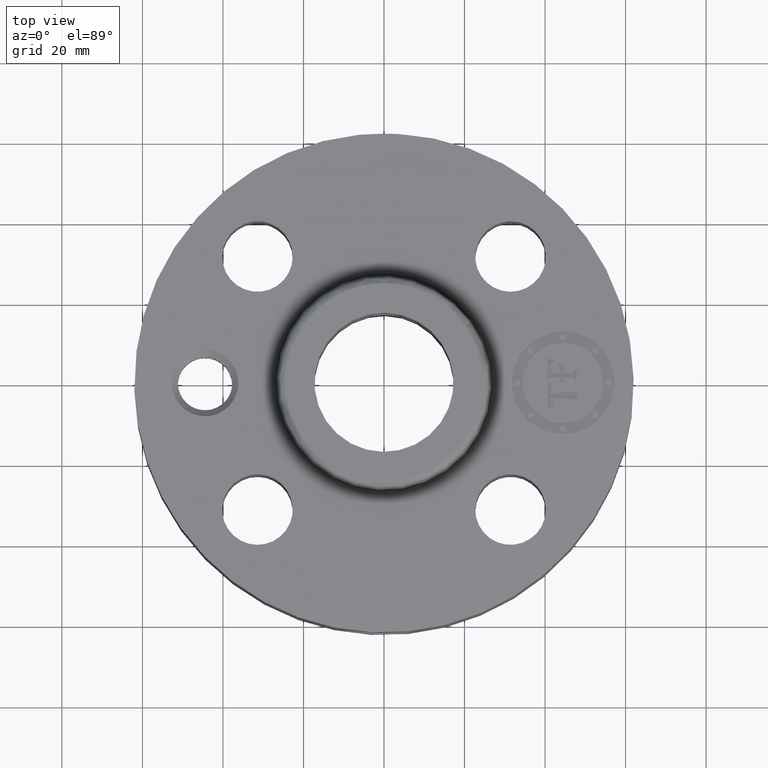
[diagram: clean part render]
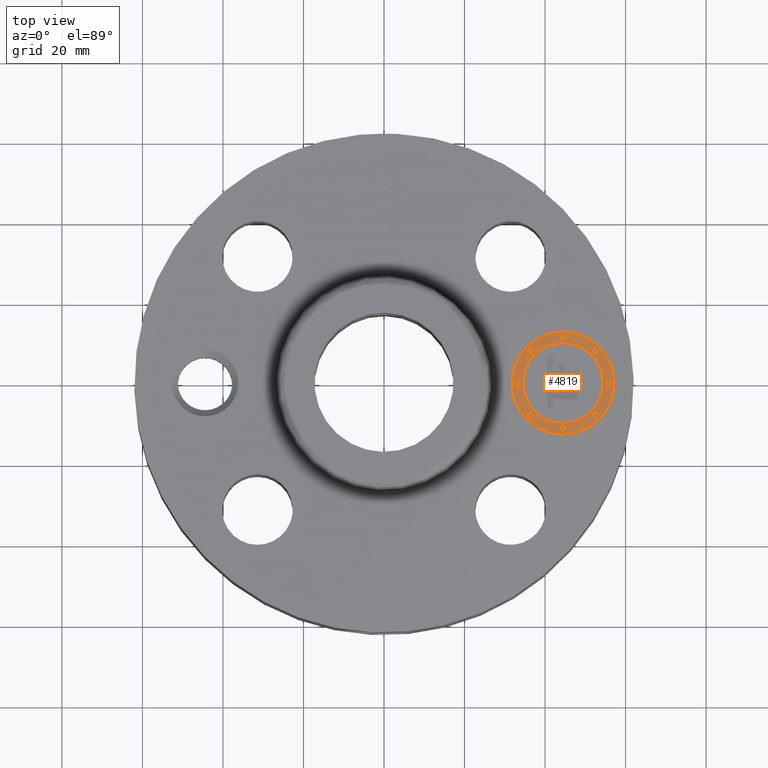
[diagram: same view with one face highlighted and labeled with its STEP entity id]
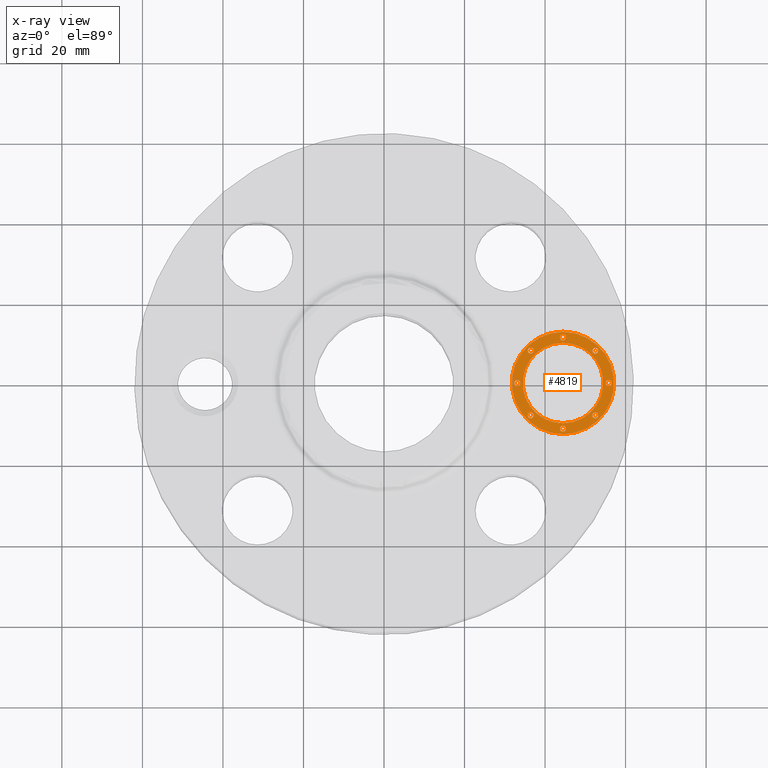
[diagram: x-ray of the same camera — body ghosted, the highlighted face saturated]
A machine part, top view. The second image highlights one B-rep face of the part: STEP entity #4819.
The next image is the same camera in x-ray: the body ghosted, the highlighted face saturated — about 0% of this face is hidden behind the body in this view.
In plain terms, the highlighted planar face has unit normal (0, 0, 1).
Its self-contained STEP definition (entity closure, byte-faithful):
#3497=AXIS2_PLACEMENT_3D('Circle Axis2P3D',#3495,#3496,$) ;
#3524=AXIS2_PLACEMENT_3D('Circle Axis2P3D',#3522,#3523,$) ;
#4651=AXIS2_PLACEMENT_3D('Plane Axis2P3D',#4648,#4649,#4650) ;
#4659=AXIS2_PLACEMENT_3D('Circle Axis2P3D',#4657,#4658,$) ;
#4668=AXIS2_PLACEMENT_3D('Circle Axis2P3D',#4666,#4667,$) ;
#4677=AXIS2_PLACEMENT_3D('Circle Axis2P3D',#4675,#4676,$) ;
#4686=AXIS2_PLACEMENT_3D('Circle Axis2P3D',#4684,#4685,$) ;
#4695=AXIS2_PLACEMENT_3D('Circle Axis2P3D',#4693,#4694,$) ;
#4704=AXIS2_PLACEMENT_3D('Circle Axis2P3D',#4702,#4703,$) ;
#4713=AXIS2_PLACEMENT_3D('Circle Axis2P3D',#4711,#4712,$) ;
#4722=AXIS2_PLACEMENT_3D('Circle Axis2P3D',#4720,#4721,$) ;
#4731=AXIS2_PLACEMENT_3D('Circle Axis2P3D',#4729,#4730,$) ;
#4740=AXIS2_PLACEMENT_3D('Circle Axis2P3D',#4738,#4739,$) ;
#4749=AXIS2_PLACEMENT_3D('Circle Axis2P3D',#4747,#4748,$) ;
#4758=AXIS2_PLACEMENT_3D('Circle Axis2P3D',#4756,#4757,$) ;
#4767=AXIS2_PLACEMENT_3D('Circle Axis2P3D',#4765,#4766,$) ;
#4776=AXIS2_PLACEMENT_3D('Circle Axis2P3D',#4774,#4775,$) ;
#4785=AXIS2_PLACEMENT_3D('Circle Axis2P3D',#4783,#4784,$) ;
#4794=AXIS2_PLACEMENT_3D('Circle Axis2P3D',#4792,#4793,$) ;
#4803=AXIS2_PLACEMENT_3D('Circle Axis2P3D',#4801,#4802,$) ;
#4812=AXIS2_PLACEMENT_3D('Circle Axis2P3D',#4810,#4811,$) ;
#3492=CARTESIAN_POINT('Vertex',(1.75000000001,-0.500000000002,1.54500000001)) ;
#3495=CARTESIAN_POINT('Axis2P3D Location',(1.75000000001,0.,1.54500000001)) ;
#3499=CARTESIAN_POINT('Vertex',(1.75000000001,0.500000000002,1.54500000001)) ;
#3522=CARTESIAN_POINT('Axis2P3D Location',(1.75000000001,0.,1.54500000001)) ;
#4648=CARTESIAN_POINT('Axis2P3D Location',(0.,0.,1.54500000001)) ;
#4657=CARTESIAN_POINT('Axis2P3D Location',(1.75000000001,0.,1.54500000001)) ;
#4661=CARTESIAN_POINT('Vertex',(1.75000000001,-0.393939393941,1.54500000001)) ;
#4663=CARTESIAN_POINT('Vertex',(1.75000000001,0.393939393941,1.54500000001)) ;
#4666=CARTESIAN_POINT('Axis2P3D Location',(1.75000000001,0.,1.54500000001)) ;
#4675=CARTESIAN_POINT('Axis2P3D Location',(1.30303030304,-1.27155106614E-015,1.54500000001)) ;
#4679=CARTESIAN_POINT('Vertex',(1.30303030304,-0.0303030303032,1.54500000001)) ;
#4681=CARTESIAN_POINT('Vertex',(1.30303030304,0.0303030303032,1.54500000001)) ;
#4684=CARTESIAN_POINT('Axis2P3D Location',(1.30303030304,-1.27155106614E-015,1.54500000001)) ;
#4693=CARTESIAN_POINT('Axis2P3D Location',(1.75000000001,0.446969696972,1.54500000001)) ;
#4697=CARTESIAN_POINT('Vertex',(1.75000000001,0.416666666668,1.54500000001)) ;
#4699=CARTESIAN_POINT('Vertex',(1.75000000001,0.477272727275,1.54500000001)) ;
#4702=CARTESIAN_POINT('Axis2P3D Location',(1.75000000001,0.446969696972,1.54500000001)) ;
#4711=CARTESIAN_POINT('Axis2P3D Location',(1.43394469629,0.316055303713,1.54500000001)) ;
#4715=CARTESIAN_POINT('Vertex',(1.43394469629,0.28575227341,1.54500000001)) ;
#4717=CARTESIAN_POINT('Vertex',(1.43394469629,0.346358334017,1.54500000001)) ;
#4720=CARTESIAN_POINT('Axis2P3D Location',(1.43394469629,0.316055303713,1.54500000001)) ;
#4729=CARTESIAN_POINT('Axis2P3D Location',(2.19696969698,1.17265264989E-014,1.54500000001)) ;
#4733=CARTESIAN_POINT('Vertex',(2.19696969698,-0.0303030303031,1.54500000001)) ;
#4735=CARTESIAN_POINT('Vertex',(2.19696969698,0.0303030303032,1.54500000001)) ;
#4738=CARTESIAN_POINT('Axis2P3D Location',(2.19696969698,1.17265264989E-014,1.54500000001)) ;
#4747=CARTESIAN_POINT('Axis2P3D Location',(2.06605530372,0.316055303713,1.54500000001)) ;
#4751=CARTESIAN_POINT('Vertex',(2.06605530372,0.28575227341,1.54500000001)) ;
#4753=CARTESIAN_POINT('Vertex',(2.06605530372,0.346358334017,1.54500000001)) ;
#4756=CARTESIAN_POINT('Axis2P3D Location',(2.06605530372,0.316055303713,1.54500000001)) ;
#4765=CARTESIAN_POINT('Axis2P3D Location',(1.75000000001,-0.446969696972,1.54500000001)) ;
#4769=CARTESIAN_POINT('Vertex',(1.75000000001,-0.416666666668,1.54500000001)) ;
#4771=CARTESIAN_POINT('Vertex',(1.75000000001,-0.477272727275,1.54500000001)) ;
#4774=CARTESIAN_POINT('Axis2P3D Location',(1.75000000001,-0.446969696972,1.54500000001)) ;
#4783=CARTESIAN_POINT('Axis2P3D Location',(1.43394469629,-0.316055303713,1.54500000001)) ;
#4787=CARTESIAN_POINT('Vertex',(1.43394469629,-0.28575227341,1.54500000001)) ;
#4789=CARTESIAN_POINT('Vertex',(1.43394469629,-0.346358334017,1.54500000001)) ;
#4792=CARTESIAN_POINT('Axis2P3D Location',(1.43394469629,-0.316055303713,1.54500000001)) ;
#4801=CARTESIAN_POINT('Axis2P3D Location',(2.06605530372,-0.316055303713,1.54500000001)) ;
#4805=CARTESIAN_POINT('Vertex',(2.06605530372,-0.28575227341,1.54500000001)) ;
#4807=CARTESIAN_POINT('Vertex',(2.06605530372,-0.346358334017,1.54500000001)) ;
#4810=CARTESIAN_POINT('Axis2P3D Location',(2.06605530372,-0.316055303713,1.54500000001)) ;
#3496=DIRECTION('Axis2P3D Direction',(0.,0.,0.0393700787402)) ;
#3523=DIRECTION('Axis2P3D Direction',(0.,0.,0.0393700787402)) ;
#4649=DIRECTION('Axis2P3D Direction',(0.,0.,0.0393700787402)) ;
#4650=DIRECTION('Axis2P3D XDirection',(0.0393700787402,0.,0.)) ;
#4658=DIRECTION('Axis2P3D Direction',(0.,0.,0.0393700787402)) ;
#4667=DIRECTION('Axis2P3D Direction',(0.,0.,0.0393700787402)) ;
#4676=DIRECTION('Axis2P3D Direction',(0.,0.,0.0393700787402)) ;
#4685=DIRECTION('Axis2P3D Direction',(0.,0.,0.0393700787402)) ;
#4694=DIRECTION('Axis2P3D Direction',(0.,0.,0.0393700787402)) ;
#4703=DIRECTION('Axis2P3D Direction',(0.,0.,0.0393700787402)) ;
#4712=DIRECTION('Axis2P3D Direction',(0.,0.,0.0393700787402)) ;
#4721=DIRECTION('Axis2P3D Direction',(0.,0.,0.0393700787402)) ;
#4730=DIRECTION('Axis2P3D Direction',(0.,0.,0.0393700787402)) ;
#4739=DIRECTION('Axis2P3D Direction',(0.,0.,0.0393700787402)) ;
#4748=DIRECTION('Axis2P3D Direction',(0.,0.,0.0393700787402)) ;
#4757=DIRECTION('Axis2P3D Direction',(0.,0.,0.0393700787402)) ;
#4766=DIRECTION('Axis2P3D Direction',(0.,0.,0.0393700787402)) ;
#4775=DIRECTION('Axis2P3D Direction',(0.,0.,0.0393700787402)) ;
#4784=DIRECTION('Axis2P3D Direction',(0.,0.,0.0393700787402)) ;
#4793=DIRECTION('Axis2P3D Direction',(0.,0.,0.0393700787402)) ;
#4802=DIRECTION('Axis2P3D Direction',(0.,0.,0.0393700787402)) ;
#4811=DIRECTION('Axis2P3D Direction',(0.,0.,0.0393700787402)) ;
#4654=ORIENTED_EDGE('',*,*,#3501,.T.) ;
#4655=ORIENTED_EDGE('',*,*,#3526,.T.) ;
#4672=ORIENTED_EDGE('',*,*,#4665,.F.) ;
#4673=ORIENTED_EDGE('',*,*,#4670,.F.) ;
#4690=ORIENTED_EDGE('',*,*,#4683,.F.) ;
#4691=ORIENTED_EDGE('',*,*,#4688,.F.) ;
#4708=ORIENTED_EDGE('',*,*,#4701,.F.) ;
#4709=ORIENTED_EDGE('',*,*,#4706,.F.) ;
#4726=ORIENTED_EDGE('',*,*,#4719,.F.) ;
#4727=ORIENTED_EDGE('',*,*,#4724,.F.) ;
#4744=ORIENTED_EDGE('',*,*,#4737,.F.) ;
#4745=ORIENTED_EDGE('',*,*,#4742,.F.) ;
#4762=ORIENTED_EDGE('',*,*,#4755,.F.) ;
#4763=ORIENTED_EDGE('',*,*,#4760,.F.) ;
#4780=ORIENTED_EDGE('',*,*,#4773,.F.) ;
#4781=ORIENTED_EDGE('',*,*,#4778,.F.) ;
#4798=ORIENTED_EDGE('',*,*,#4791,.F.) ;
#4799=ORIENTED_EDGE('',*,*,#4796,.F.) ;
#4816=ORIENTED_EDGE('',*,*,#4809,.F.) ;
#4817=ORIENTED_EDGE('',*,*,#4814,.F.) ;
#4674=FACE_BOUND('',#4671,.T.) ;
#4692=FACE_BOUND('',#4689,.T.) ;
#4710=FACE_BOUND('',#4707,.T.) ;
#4728=FACE_BOUND('',#4725,.T.) ;
#4746=FACE_BOUND('',#4743,.T.) ;
#4764=FACE_BOUND('',#4761,.T.) ;
#4782=FACE_BOUND('',#4779,.T.) ;
#4800=FACE_BOUND('',#4797,.T.) ;
#4818=FACE_BOUND('',#4815,.T.) ;
#4819=ADVANCED_FACE('PartBody',(#4656,#4674,#4692,#4710,#4728,#4746,#4764,#4782,#4800,#4818),#4652,.T.) ;
#3498=CIRCLE('generated circle',#3497,0.500000000002) ;
#3525=CIRCLE('generated circle',#3524,0.500000000002) ;
#4660=CIRCLE('generated circle',#4659,0.393939393941) ;
#4669=CIRCLE('generated circle',#4668,0.393939393941) ;
#4678=CIRCLE('generated circle',#4677,0.0303030303032) ;
#4687=CIRCLE('generated circle',#4686,0.0303030303032) ;
#4696=CIRCLE('generated circle',#4695,0.0303030303032) ;
#4705=CIRCLE('generated circle',#4704,0.0303030303032) ;
#4714=CIRCLE('generated circle',#4713,0.0303030303032) ;
#4723=CIRCLE('generated circle',#4722,0.0303030303032) ;
#4732=CIRCLE('generated circle',#4731,0.0303030303032) ;
#4741=CIRCLE('generated circle',#4740,0.0303030303032) ;
#4750=CIRCLE('generated circle',#4749,0.0303030303032) ;
#4759=CIRCLE('generated circle',#4758,0.0303030303032) ;
#4768=CIRCLE('generated circle',#4767,0.0303030303032) ;
#4777=CIRCLE('generated circle',#4776,0.0303030303032) ;
#4786=CIRCLE('generated circle',#4785,0.0303030303032) ;
#4795=CIRCLE('generated circle',#4794,0.0303030303032) ;
#4804=CIRCLE('generated circle',#4803,0.0303030303032) ;
#4813=CIRCLE('generated circle',#4812,0.0303030303032) ;
#3501=EDGE_CURVE('',#3500,#3493,#3498,.T.) ;
#3526=EDGE_CURVE('',#3493,#3500,#3525,.T.) ;
#4665=EDGE_CURVE('',#4662,#4664,#4660,.T.) ;
#4670=EDGE_CURVE('',#4664,#4662,#4669,.T.) ;
#4683=EDGE_CURVE('',#4680,#4682,#4678,.T.) ;
#4688=EDGE_CURVE('',#4682,#4680,#4687,.T.) ;
#4701=EDGE_CURVE('',#4698,#4700,#4696,.T.) ;
#4706=EDGE_CURVE('',#4700,#4698,#4705,.T.) ;
#4719=EDGE_CURVE('',#4716,#4718,#4714,.T.) ;
#4724=EDGE_CURVE('',#4718,#4716,#4723,.T.) ;
#4737=EDGE_CURVE('',#4734,#4736,#4732,.T.) ;
#4742=EDGE_CURVE('',#4736,#4734,#4741,.T.) ;
#4755=EDGE_CURVE('',#4752,#4754,#4750,.T.) ;
#4760=EDGE_CURVE('',#4754,#4752,#4759,.T.) ;
#4773=EDGE_CURVE('',#4770,#4772,#4768,.T.) ;
#4778=EDGE_CURVE('',#4772,#4770,#4777,.T.) ;
#4791=EDGE_CURVE('',#4788,#4790,#4786,.T.) ;
#4796=EDGE_CURVE('',#4790,#4788,#4795,.T.) ;
#4809=EDGE_CURVE('',#4806,#4808,#4804,.T.) ;
#4814=EDGE_CURVE('',#4808,#4806,#4813,.T.) ;
#4653=EDGE_LOOP('',(#4654,#4655)) ;
#4671=EDGE_LOOP('',(#4672,#4673)) ;
#4689=EDGE_LOOP('',(#4690,#4691)) ;
#4707=EDGE_LOOP('',(#4708,#4709)) ;
#4725=EDGE_LOOP('',(#4726,#4727)) ;
#4743=EDGE_LOOP('',(#4744,#4745)) ;
#4761=EDGE_LOOP('',(#4762,#4763)) ;
#4779=EDGE_LOOP('',(#4780,#4781)) ;
#4797=EDGE_LOOP('',(#4798,#4799)) ;
#4815=EDGE_LOOP('',(#4816,#4817)) ;
#4656=FACE_OUTER_BOUND('',#4653,.T.) ;
#4652=PLANE('',#4651) ;
#3493=VERTEX_POINT('',#3492) ;
#3500=VERTEX_POINT('',#3499) ;
#4662=VERTEX_POINT('',#4661) ;
#4664=VERTEX_POINT('',#4663) ;
#4680=VERTEX_POINT('',#4679) ;
#4682=VERTEX_POINT('',#4681) ;
#4698=VERTEX_POINT('',#4697) ;
#4700=VERTEX_POINT('',#4699) ;
#4716=VERTEX_POINT('',#4715) ;
#4718=VERTEX_POINT('',#4717) ;
#4734=VERTEX_POINT('',#4733) ;
#4736=VERTEX_POINT('',#4735) ;
#4752=VERTEX_POINT('',#4751) ;
#4754=VERTEX_POINT('',#4753) ;
#4770=VERTEX_POINT('',#4769) ;
#4772=VERTEX_POINT('',#4771) ;
#4788=VERTEX_POINT('',#4787) ;
#4790=VERTEX_POINT('',#4789) ;
#4806=VERTEX_POINT('',#4805) ;
#4808=VERTEX_POINT('',#4807) ;